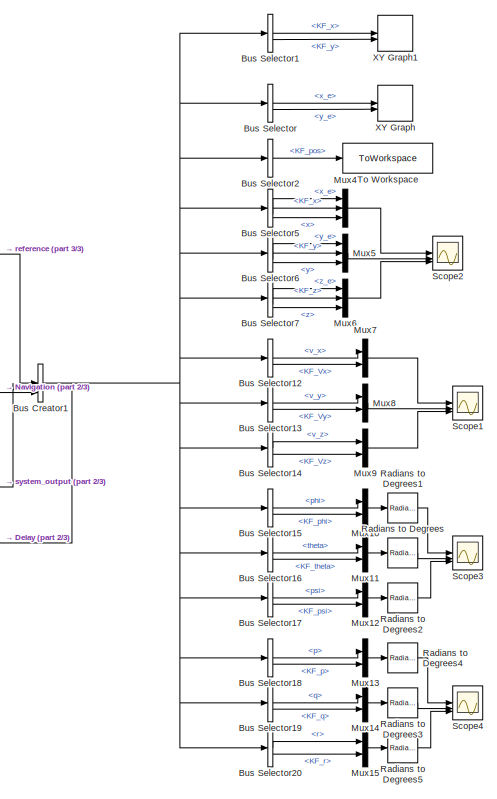
[diagram: root canvas - part 1/3, right side, full height]
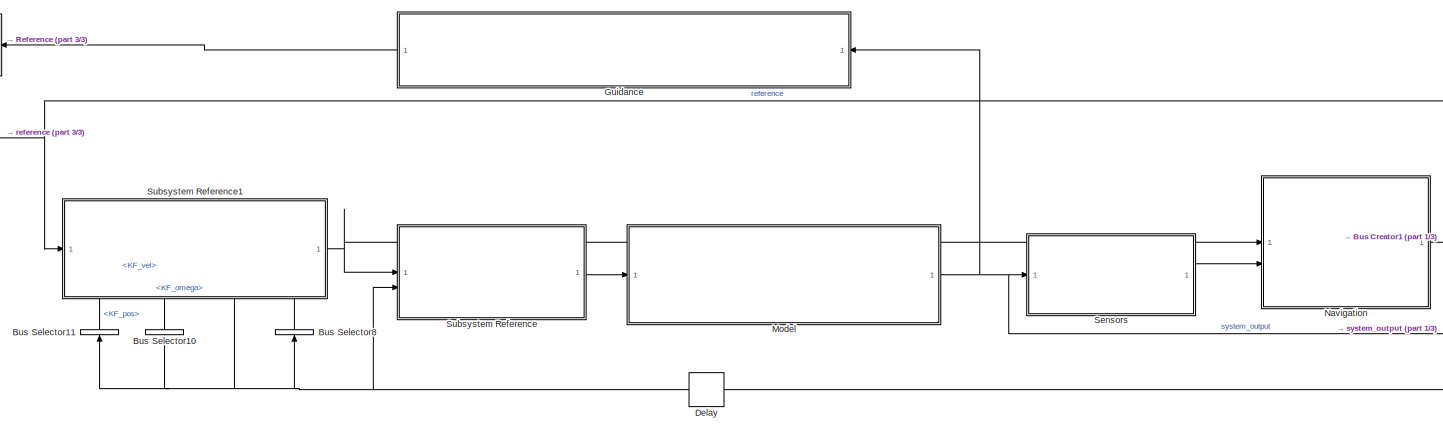
[diagram: root canvas - part 2/3, central region]
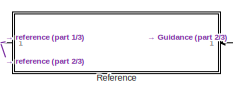
[diagram: root canvas - part 3/3, top left region]
MODEL slx_87b36256657b
KIND model
CONFIG AbsTol = auto
CONFIG EnableMultiTasking = off
CONFIG FixedStep = 0.001
CONFIG MaxStep = auto
CONFIG MinStep = auto
CONFIG RelTol = 1e-3
CONFIG SampleTimeConstraint = Unconstrained
CONFIG SolverName = VariableStepAuto
CONFIG StartTime = 0.0
CONFIG StopTime = 200
BLOCK [BusCreator] Bus Creator1
  DisplayOption = bar
  InheritFromInputs = on
  Inputs = 3
BLOCK [BusSelector] Bus Selector
  OutputSignals = system_output.pos.x_e,system_output.pos.y_e
BLOCK [BusSelector] Bus Selector1
  OutputSignals = state.KF_pos.KF_x,state.KF_pos.KF_y
BLOCK [BusSelector] Bus Selector10
  NameLocation = right
  OutputSignals = state.KF_vel
BLOCK [BusSelector] Bus Selector11
  NameLocation = right
  OutputSignals = state.KF_pos
BLOCK [BusSelector] Bus Selector12
  OutputSignals = system_output.V_e.v_x,state.KF_vel.KF_Vx
BLOCK [BusSelector] Bus Selector13
  OutputSignals = system_output.V_e.v_y,state.KF_vel.KF_Vy
BLOCK [BusSelector] Bus Selector14
  OutputSignals = system_output.V_e.v_z,state.KF_vel.KF_Vz
BLOCK [BusSelector] Bus Selector15
  OutputSignals = system_output.Att.phi,state.KF_att.KF_phi
BLOCK [BusSelector] Bus Selector16
  OutputSignals = system_output.Att.theta,state.KF_att.KF_theta
BLOCK [BusSelector] Bus Selector17
  OutputSignals = system_output.Att.psi,state.KF_att.KF_psi
BLOCK [BusSelector] Bus Selector18
  OutputSignals = system_output.ang_vel.p,state.KF_omega.KF_p
BLOCK [BusSelector] Bus Selector19
  OutputSignals = system_output.ang_vel.q,state.KF_omega.KF_q
BLOCK [BusSelector] Bus Selector2
  OutputSignals = state.KF_pos
BLOCK [BusSelector] Bus Selector20
  OutputSignals = system_output.ang_vel.r,state.KF_omega.KF_r
BLOCK [BusSelector] Bus Selector5
  OutputSignals = system_output.pos.x_e,state.KF_pos.KF_x,reference.x
BLOCK [BusSelector] Bus Selector6
  OutputSignals = system_output.pos.y_e,state.KF_pos.KF_y,reference.y
BLOCK [BusSelector] Bus Selector7
  OutputSignals = system_output.pos.z_e,state.KF_pos.KF_z,reference.z
BLOCK [BusSelector] Bus Selector8
  NameLocation = right
  OutputSignals = state.KF_omega
BLOCK [Delay] Delay
  DelayLength = 1
  InputPortMap = u0
BLOCK [SubSystem] Guidance
  ReferencedSubsystem = Guidance
BLOCK [SubSystem] Model
  ReferencedSubsystem = drone_model
BLOCK [Mux] Mux10
  DisplayOption = bar
  Inputs = 2
BLOCK [Mux] Mux11
  DisplayOption = bar
  Inputs = 2
BLOCK [Mux] Mux12
  DisplayOption = bar
  Inputs = 2
BLOCK [Mux] Mux13
  DisplayOption = bar
  Inputs = 2
BLOCK [Mux] Mux14
  DisplayOption = bar
  Inputs = 2
BLOCK [Mux] Mux15
  DisplayOption = bar
  Inputs = 2
BLOCK [Mux] Mux4
  DisplayOption = bar
  Inputs = 3
BLOCK [Mux] Mux5
  DisplayOption = bar
  Inputs = 3
BLOCK [Mux] Mux6
  DisplayOption = bar
  Inputs = 3
BLOCK [Mux] Mux7
  DisplayOption = bar
  Inputs = 2
BLOCK [Mux] Mux8
  DisplayOption = bar
  Inputs = 2
BLOCK [Mux] Mux9
  DisplayOption = bar
  Inputs = 2
BLOCK [SubSystem] Navigation
  ReferencedSubsystem = drone_navigation
BLOCK [Reference] Radians to Degrees  REF=simulink_extras/Transformations/Radians
to Degrees
  SourceBlock = simulink_extras/Transformations/Radians\nto Degrees
  SourceType = RadiansToDegrees
BLOCK [Reference] Radians to Degrees1  REF=simulink_extras/Transformations/Radians
to Degrees
  SourceBlock = simulink_extras/Transformations/Radians\nto Degrees
  SourceType = RadiansToDegrees
BLOCK [Reference] Radians to Degrees2  REF=simulink_extras/Transformations/Radians
to Degrees
  SourceBlock = simulink_extras/Transformations/Radians\nto Degrees
  SourceType = RadiansToDegrees
BLOCK [Reference] Radians to Degrees3  REF=simulink_extras/Transformations/Radians
to Degrees
  SourceBlock = simulink_extras/Transformations/Radians\nto Degrees
  SourceType = RadiansToDegrees
BLOCK [Reference] Radians to Degrees4  REF=simulink_extras/Transformations/Radians
to Degrees
  SourceBlock = simulink_extras/Transformations/Radians\nto Degrees
  SourceType = RadiansToDegrees
BLOCK [Reference] Radians to Degrees5  REF=simulink_extras/Transformations/Radians
to Degrees
  SourceBlock = simulink_extras/Transformations/Radians\nto Degrees
  SourceType = RadiansToDegrees
BLOCK [SubSystem] Reference
  ReferencedSubsystem = Reference
BLOCK [Scope] Scope1
  Floating = off
  NumInputPorts = 3
  ScopeSpecificationString = Simulink.scopes.TimeScopeBlockCfg('CurrentConfiguration', extmgr.ConfigurationSet(extmgr.Configuration('Core','General UI',true),extmgr.Configuration('Core','Source UI',true),extmgr.Configuration('Sources','WiredSimulink',true,'DataLoggingVariableName','ScopeData5'),extmgr.Configuration('Visuals','Time Domain',true,'SerializedDisplays',{struct('MinYLimReal','-1.24417','MaxYLimReal','10.77327','YLa...<+2750ch>
BLOCK [Scope] Scope2
  Floating = off
  NumInputPorts = 3
  ScopeSpecificationString = Simulink.scopes.TimeScopeBlockCfg('CurrentConfiguration', extmgr.ConfigurationSet(extmgr.Configuration('Core','General UI',true),extmgr.Configuration('Core','Source UI',true),extmgr.Configuration('Sources','WiredSimulink',true,'DataLoggingVariableName','ScopeData2'),extmgr.Configuration('Visuals','Time Domain',true,'SerializedDisplays',{struct('MinYLimReal','-10.225','MaxYLimReal','92.025','YLabel...<+2748ch>
BLOCK [Scope] Scope3
  Floating = off
  NumInputPorts = 3
  ScopeSpecificationString = Simulink.scopes.TimeScopeBlockCfg('CurrentConfiguration', extmgr.ConfigurationSet(extmgr.Configuration('Core','General UI',true),extmgr.Configuration('Core','Source UI',true),extmgr.Configuration('Sources','WiredSimulink',true,'DataLoggingVariableName','ScopeData6'),extmgr.Configuration('Visuals','Time Domain',true,'SerializedDisplays',{struct('MinYLimReal','-6.23504','MaxYLimReal','6.61068','YLab...<+2750ch>
BLOCK [Scope] Scope4
  Floating = off
  NumInputPorts = 3
  ScopeSpecificationString = Simulink.scopes.TimeScopeBlockCfg('CurrentConfiguration', extmgr.ConfigurationSet(extmgr.Configuration('Core','General UI',true),extmgr.Configuration('Core','Source UI',true),extmgr.Configuration('Sources','WiredSimulink',true,'DataLoggingVariableName','ScopeData7'),extmgr.Configuration('Visuals','Time Domain',true,'SerializedDisplays',{struct('MinYLimReal','-48.70135','MaxYLimReal','47.96556','YL...<+2751ch>
BLOCK [SubSystem] Sensors
  ReferencedSubsystem = sensor_model
  ShowPortLabels = none
BLOCK [SubSystem] Subsystem Reference
  ReferencedSubsystem = control_allocation
BLOCK [SubSystem] Subsystem Reference1
  PortSchema = {"entries":[{"content":{"sides":[{"content":{"connectorIds":["In1"]},"type":"ConnectorPlacement.EquallySpacedRectSide","uuid":"cbb659e7-d19a-4e68-9ae7-e5e39426296b"},{"content":{"connectorIds":["Out1"],"side":"RIGHT"},"type":"ConnectorPlacement.EquallySpacedRectSide","uuid":"c9f08a4e-80d9-41bf-93e6-4cfd11b32426"},{"content":{"side":"TOP"},"type":"ConnectorPlacement.EquallySpacedRectSide","uuid":"8...<+389ch>
  ReferencedSubsystem = control_law
  ShowPortLabels = none
BLOCK [ToWorkspace] To Workspace
  FixptAsFi = on
  MaxDataPoints = inf
  SampleTime = param.dt
  SaveFormat = Timeseries
  VariableName = position
BLOCK [Record] XY Graph
  CompatibilityTag = XY
  FileSettingsInternal = {"entries":[{"content":{"excelSettings":{"content":{},"type":"Streamout.ExcelSettings"}},"type":"Streamout.FileSettingStorage","uuid":""}],"packageUris":["http:\/\/schema.mathworks.com\/mf0\/streamout_blocks\/R2020a"],"version":"1.0"}
  Layout = [1 1]
  SignalsInternal = {"entries":[{"content":{"signals":[{"content":{"blockPath":[],"dimensions":[1],"domain":"","lineColor":"#77ac30","port":1,"sid":[""],"signalID":1253,"signalName":"<x_e>"},"type":"RecordBlkView.Signal","uuid":""},{"content":{"blockPath":[],"dimensions":[1],"domain":"","lineColor":"#4dbeee","port":2,"sid":[""],"signalID":1257,"signalName":"<y_e>"},"type":"RecordBlkView.Signal","uuid":""}]},"type":"R...<+134ch>
  VisualizationBindings = {"xyplotplugin":{"info":[{"series":[],"subplotID":1}]}}
BLOCK [Record] XY Graph1
  CompatibilityTag = XY
  FileSettingsInternal = {"entries":[{"content":{"excelSettings":{"content":{},"type":"Streamout.ExcelSettings"}},"type":"Streamout.FileSettingStorage","uuid":""}],"packageUris":["http:\/\/schema.mathworks.com\/mf0\/streamout_blocks\/R2020a"],"version":"1.0"}
  Layout = [1 1]
  SignalsInternal = {"entries":[{"content":{"signals":[{"content":{"blockPath":[],"dimensions":[1],"domain":"","lineColor":"#a2142f","port":1,"sid":[""],"signalID":1261,"signalName":"<KF_x>"},"type":"RecordBlkView.Signal","uuid":""},{"content":{"blockPath":[],"dimensions":[1],"domain":"","lineColor":"#139fff","port":2,"sid":[""],"signalID":1265,"signalName":"<KF_y>"},"type":"RecordBlkView.Signal","uuid":""}]},"type":...<+136ch>
  VisualizationBindings = {"xyplotplugin":{"info":[{"series":[],"subplotID":1}]}}
NET Bus Creator1:1 -> Bus Selector12:1, Bus Selector13:1, Bus Selector14:1, Bus Selector15:1, Bus Selector16:1, Bus Selector17:1, Bus Selector18:1, Bus Selector19:1, Bus Selector1:1, Bus Selector20:1, Bus Selector2:1, Bus Selector5:1, Bus Selector6:1, Bus Selector7:1, Bus Selector:1, Delay:1
LINE Bus Selector10:1 -> Subsystem Reference1:3
LINE Bus Selector11:1 -> Subsystem Reference1:2
LINE Bus Selector12:1 -> Mux7:1
LINE Bus Selector12:2 -> Mux7:2
LINE Bus Selector13:1 -> Mux8:1
LINE Bus Selector13:2 -> Mux8:2
LINE Bus Selector14:1 -> Mux9:1
LINE Bus Selector14:2 -> Mux9:2
LINE Bus Selector15:1 -> Mux10:1
LINE Bus Selector15:2 -> Mux10:2
LINE Bus Selector16:1 -> Mux11:1
LINE Bus Selector16:2 -> Mux11:2
LINE Bus Selector17:1 -> Mux12:1
LINE Bus Selector17:2 -> Mux12:2
LINE Bus Selector18:1 -> Mux13:1
LINE Bus Selector18:2 -> Mux13:2
LINE Bus Selector19:1 -> Mux14:1
LINE Bus Selector19:2 -> Mux14:2
LINE Bus Selector1:1 -> XY Graph1:1
LINE Bus Selector1:2 -> XY Graph1:2
LINE Bus Selector20:1 -> Mux15:1
LINE Bus Selector20:2 -> Mux15:2
LINE Bus Selector2:1 -> To Workspace:1
LINE Bus Selector5:1 -> Mux4:1
LINE Bus Selector5:2 -> Mux4:2
LINE Bus Selector5:3 -> Mux4:3
LINE Bus Selector6:1 -> Mux5:1
LINE Bus Selector6:2 -> Mux5:2
LINE Bus Selector6:3 -> Mux5:3
LINE Bus Selector7:1 -> Mux6:1
LINE Bus Selector7:2 -> Mux6:2
LINE Bus Selector7:3 -> Mux6:3
LINE Bus Selector8:1 -> Subsystem Reference1:5
LINE Bus Selector:1 -> XY Graph:1
LINE Bus Selector:2 -> XY Graph:2
NET Delay:1 -> Bus Selector10:1, Bus Selector11:1, Bus Selector8:1, Subsystem Reference1:4, Subsystem Reference:2
LINE Guidance:1 -> Reference:1
NET Model:1 -> Bus Creator1:2, Guidance:1, Sensors:1
LINE Mux10:1 -> Radians to Degrees1:1
LINE Mux11:1 -> Radians to Degrees:1
LINE Mux12:1 -> Radians to Degrees2:1
LINE Mux13:1 -> Radians to Degrees4:1
LINE Mux14:1 -> Radians to Degrees3:1
LINE Mux15:1 -> Radians to Degrees5:1
LINE Mux4:1 -> Scope2:1
LINE Mux5:1 -> Scope2:2
LINE Mux6:1 -> Scope2:3
LINE Mux7:1 -> Scope1:1
LINE Mux8:1 -> Scope1:2
LINE Mux9:1 -> Scope1:3
LINE Navigation:1 -> Bus Creator1:3
LINE Radians to Degrees1:1 -> Scope3:1
LINE Radians to Degrees2:1 -> Scope3:3
LINE Radians to Degrees3:1 -> Scope4:2
LINE Radians to Degrees4:1 -> Scope4:1
LINE Radians to Degrees5:1 -> Scope4:3
LINE Radians to Degrees:1 -> Scope3:2
NET Reference:1 -> Bus Creator1:1, Subsystem Reference1:1
LINE Sensors:1 -> Navigation:2
NET Subsystem Reference1:1 -> Navigation:1, Subsystem Reference:1
LINE Subsystem Reference:1 -> Model:1
note: NET lines group one-source signal fan-out (src -> all destinations, sorted); 1:1 wires keep LINE
